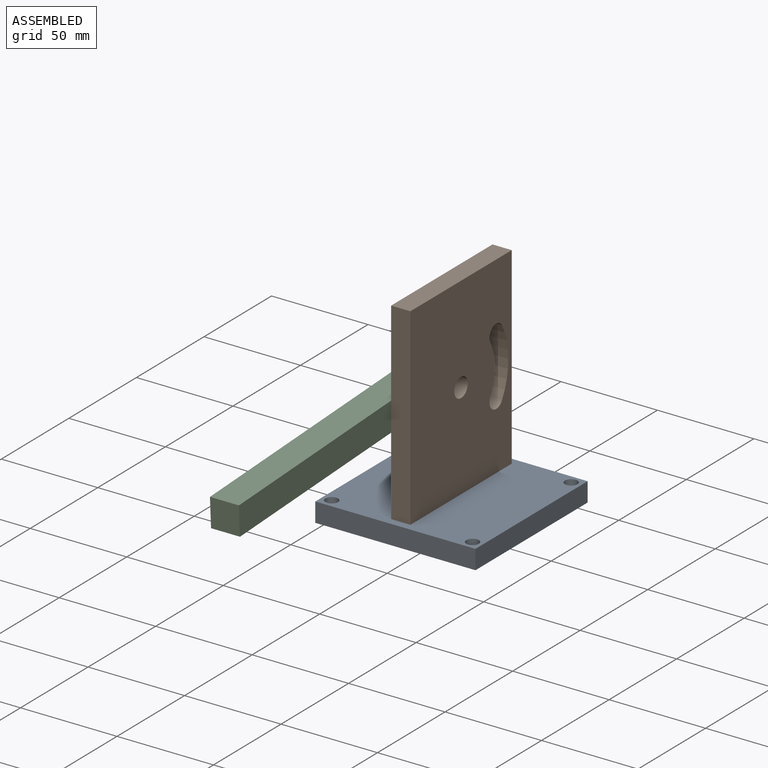
[diagram: assembled view]
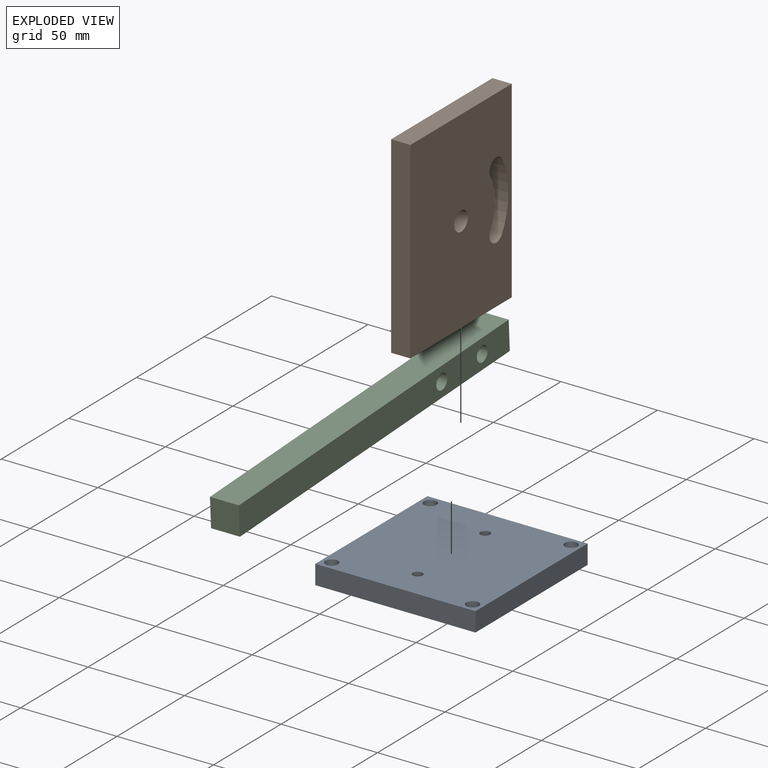
[diagram: exploded view]
GUIDED TOUR — MATED ASSEMBLY (Onshape document 552bffa299c8f2add3748529, AutoMate assembly 552bffa299c8f2add3748529_c0f6830e44eadf8c349f71ad_71cb92683339becc599525eb_default)

This assembly has 3 components, labeled P0..P2 below (a component is one placed occurrence of a part; the same part can appear more than once), held together by 3 mates. A mate is a constraint between two components; its type names the relative motion it leaves free:
  REVOLUTE — leaves rotation about the listed axis free (a hinge).
Axis/direction vectors are unit vectors and 'through' points are millimeter coordinates, both in the assembly's world frame.

MATES
  1. REVOLUTE "Revolute 2": P1 <-> P0, axis (0.000, 0.000, -1.000) through (27.87, -67.23, -19.62) mm
  2. REVOLUTE "Revolute 3": P2 <-> P1, axis (1.000, 0.000, 0.000) through (22.87, -42.23, 30.38) mm
  3. REVOLUTE "Revolute 1": P1 <-> P0, axis (0.000, 0.000, -1.000) through (27.87, -17.23, -19.62) mm

ASSEMBLY ORDER
  1. P2 — the base component [order verified]
  2. P1 [order verified]
  3. P0 [order verified]
Order-tag legend:
  [order verified] — this step's position reverses a verified removal order: the component was checked to insert without passing through the ones already placed.

Of the 3 components, 3 carry the full construction recipe — the FeatureScript program that regenerates the part's solid from scratch; the rest are supplied as boundary geometry only.
Each toured component is shown spotlighted twice — in the assembled view, then in the exploded view, where a leader line traces a displaced component back to its assembled socket (saturated green if recipe-attached, orange if geometry-only; every other component desaturated gray) — followed by its recipe or geometry summary and the mates that hold it.
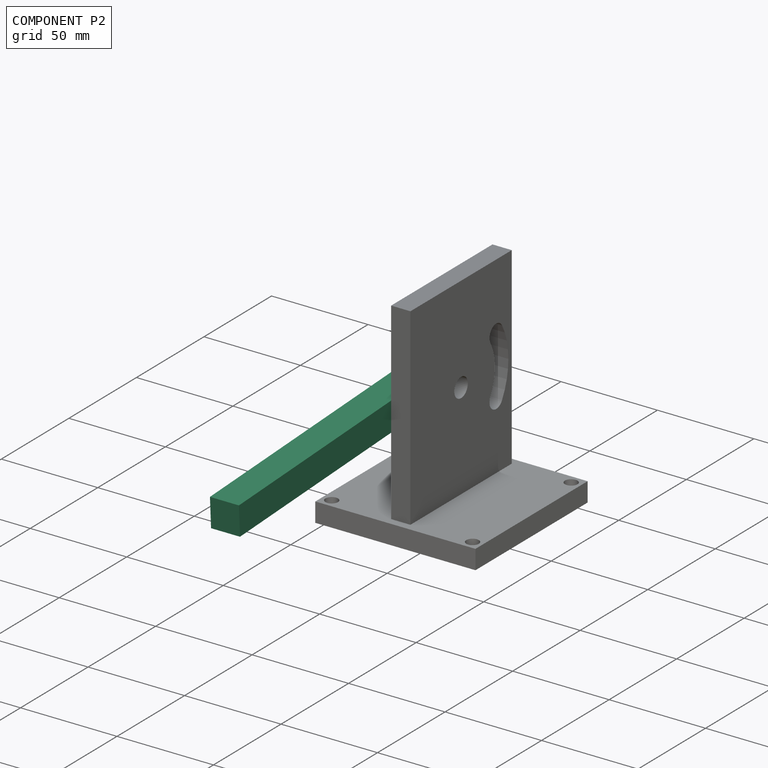
[diagram: component P2 — assembled]
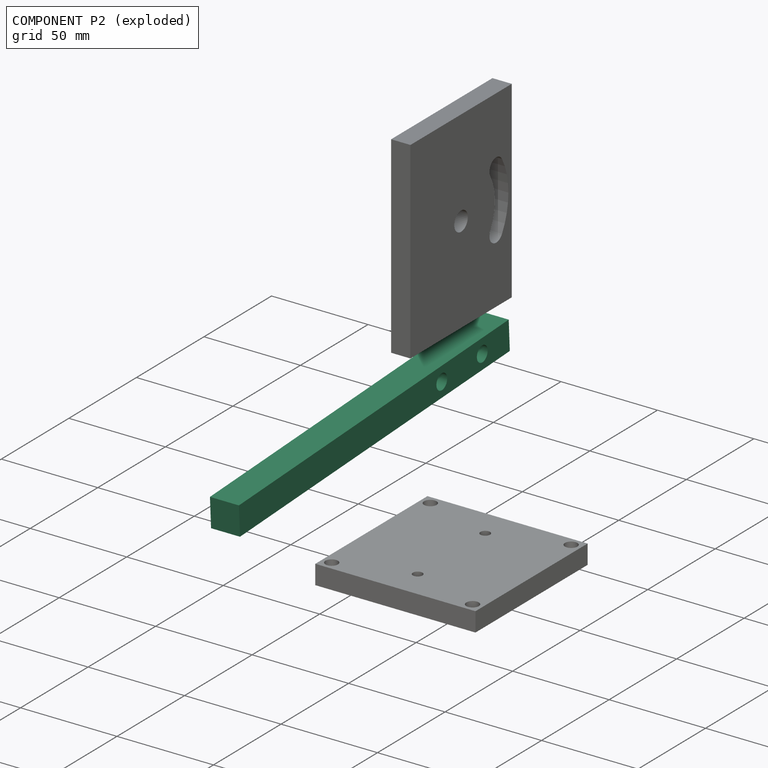
[diagram: component P2 — exploded]
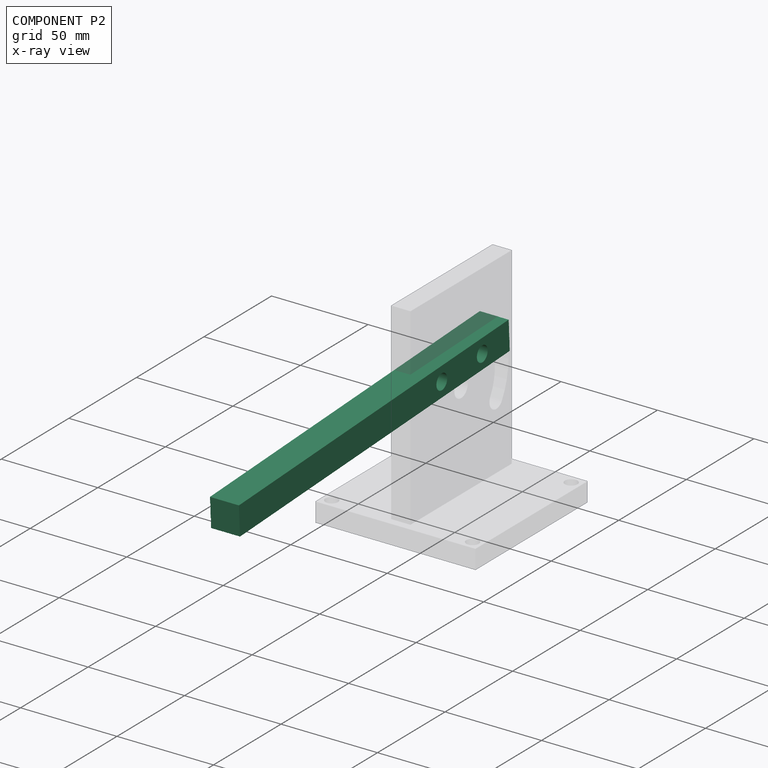
[diagram: component P2 — x-ray view]
COMPONENT P2 — recipe-attached (CADFS 00929787, mesh-verified: the recipe's output STEP matches this component's geometry to below the mesh-comparison resolution (tessellation chordal tolerance ~0.302 mm)).
Held by: REVOLUTE mate "Revolute 3" to P1.
Construction recipe (FeatureScript — the CAD program that rebuilds this solid; sketch coordinates are in the units given by the * unit suffixes, e.g. mm):

FeatureScript 1511;
import(path : "onshape/std/geometry.fs", version : "1511.0");
import(path : "onshape/std/common.fs", version : "1511.0");
const mm = millimeter;
const VERTEX = EntityType.VERTEX;
const EDGE = EntityType.EDGE;
const FACE = EntityType.FACE;
const BODY = EntityType.BODY;
function v(x, y){return vector(x, y);}
function OD(order){return orderDisambiguation(order);}
function OSD(set){return originalSetDisambiguation(set);}
function TD(topology){return topologyDisambiguation(topology);}
function TDD(query){return trueDependencyDisambiguation(query);}
function sQuery(a, b, c) {return sketchEntityQuery(a, b, c);}

annotation { "Feature Type Name" : "Feature", "Feature Type Description" : "" }
export const myFeature = defineFeature(function(context is Context, id is Id, definition is map)
    precondition{}
    {
        {
            var Q0;
            Q0=qCreatedBy(makeId("Top.planeOp"),FACE);
            var sketch = newSketch(context, id + "F0", { "sketchPlane" : qUnion([Q0])});
            skLineSegment(sketch, "E0.bottom", {"start": v(-7.5, -100) * mm, "end": v(7.5, -100) * mm});
            skLineSegment(sketch, "E0.top", {"start": v(-7.5, 100) * mm, "end": v(7.5, 100) * mm});
            skLineSegment(sketch, "E0.left", {"start": v(-7.5, -100) * mm, "end": v(-7.5, 100) * mm});
            skLineSegment(sketch, "E0.right", {"start": v(7.5, -100) * mm, "end": v(7.5, 100) * mm});
            skPoint(sketch, "E0.middle", {"position": v(0, 0) * mm});
            skSolve(sketch);
        }
        {
            var Q0;
            Q0 = qSketchRegion(id + "F0", true);
            extrude(context, id + "F1", {"entities" : qUnion([Q0]), "depth" : 15 * mm, "offsetDistance" : 25 * mm});
        }
        {
            var Q0;
            Q0=makeQuery(id+"F1.opExtrude","SWEPT_FACE",FACE,{"disambiguationData":[OSD([sQuery(id+"F0.wireOp",EDGE,"E0.right")])]});
            var sketch = newSketch(context, id + "F2", { "sketchPlane" : qUnion([Q0])});
            skLineSegment(sketch, "E1", {"start": v(100, 7.5) * mm, "end": v(-100, 7.5) * mm, "construction": true});
            skLineSegment(sketch, "E2", {"start": v(80, 0) * mm, "end": v(80, 15) * mm, "construction": true});
            skLineSegment(sketch, "E3", {"start": v(50, 0) * mm, "end": v(50, 15) * mm, "construction": true});
            skCircle(sketch, "E4", {"center": v(50, 7.5) * mm, "radius": 4 * mm});
            skCircle(sketch, "E5", {"center": v(80, 7.5) * mm, "radius": 4 * mm});
            skSolve(sketch);
        }
        {
            var Q0;
            Q0 = qSketchRegion(id + "F2", true);
            extrude(context, id + "F3", {"entities" : qUnion([Q0]), "operationType" : NewBodyOperationType.REMOVE, "endBound" : BoundingType.UP_TO_NEXT, "oppositeDirection" : true, "depth" : 25 * mm, "offsetDistance" : 25 * mm});
        }
    });
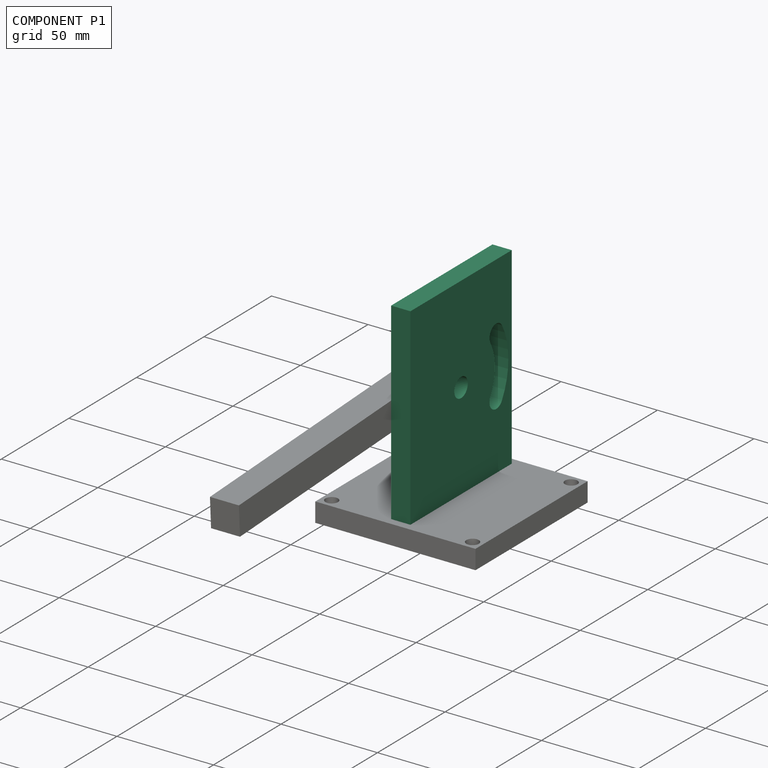
[diagram: component P1 — assembled]
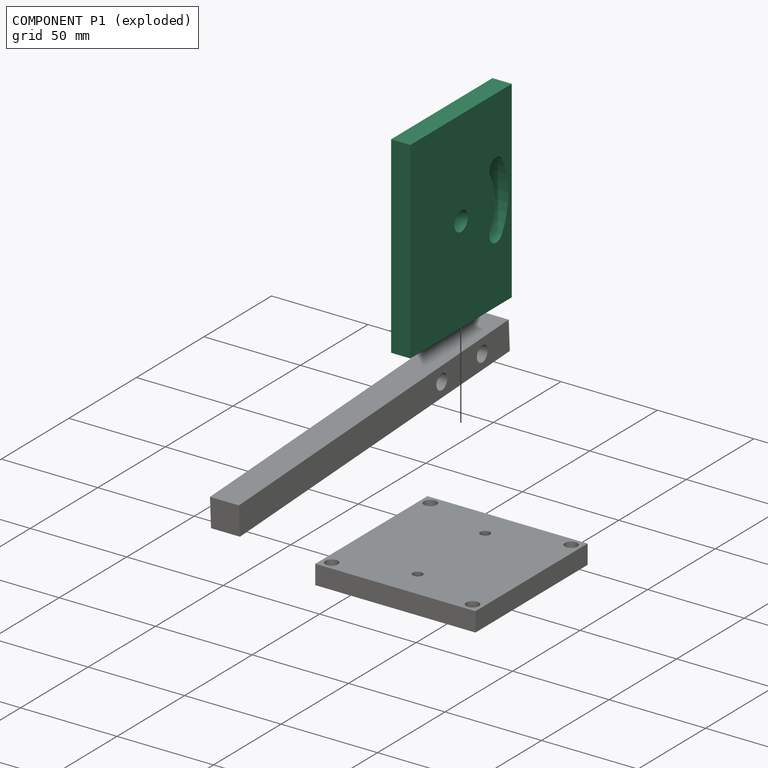
[diagram: component P1 — exploded]
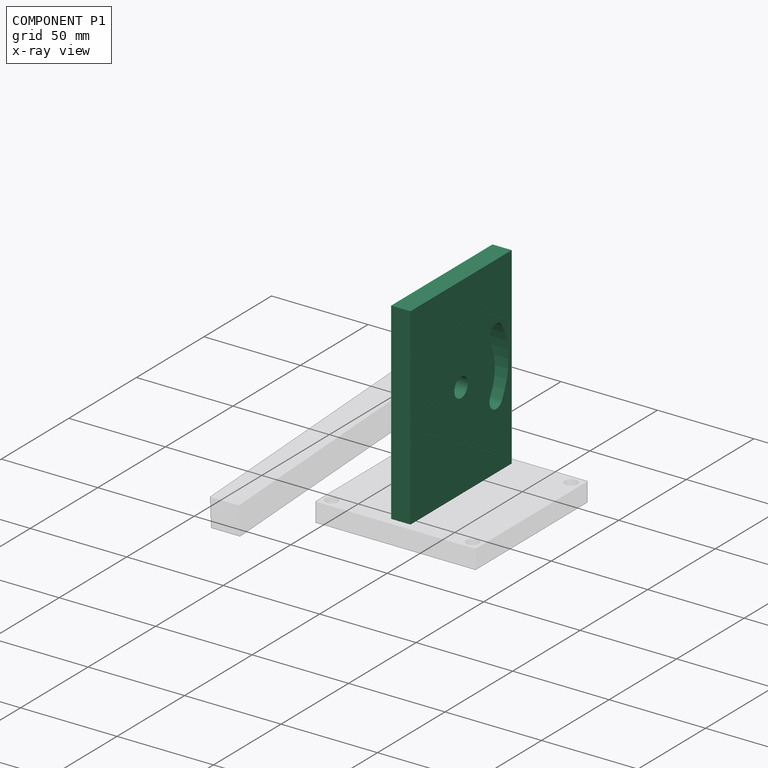
[diagram: component P1 — x-ray view]
COMPONENT P1 — recipe-attached (CADFS 00929786, mesh-verified: the recipe's output STEP matches this component's geometry to below the mesh-comparison resolution (tessellation chordal tolerance ~0.188 mm)).
Held by: REVOLUTE mate "Revolute 2" to P0; REVOLUTE mate "Revolute 3" to P2; REVOLUTE mate "Revolute 1" to P0.
Construction recipe (FeatureScript — the CAD program that rebuilds this solid; sketch coordinates are in the units given by the * unit suffixes, e.g. mm):

FeatureScript 1511;
import(path : "onshape/std/geometry.fs", version : "1511.0");
import(path : "onshape/std/common.fs", version : "1511.0");
const mm = millimeter;
const VERTEX = EntityType.VERTEX;
const EDGE = EntityType.EDGE;
const FACE = EntityType.FACE;
const BODY = EntityType.BODY;
function v(x, y){return vector(x, y);}
function OD(order){return orderDisambiguation(order);}
function OSD(set){return originalSetDisambiguation(set);}
function TD(topology){return topologyDisambiguation(topology);}
function TDD(query){return trueDependencyDisambiguation(query);}
function sQuery(a, b, c) {return sketchEntityQuery(a, b, c);}

annotation { "Feature Type Name" : "Feature", "Feature Type Description" : "" }
export const myFeature = defineFeature(function(context is Context, id is Id, definition is map)
    precondition{}
    {
        {
            var Q0;
            Q0=qCreatedBy(makeId("Top.planeOp"),FACE);
            var sketch = newSketch(context, id + "F0", { "sketchPlane" : qUnion([Q0])});
            skLineSegment(sketch, "E0.bottom", {"start": v(5, 37.5) * mm, "end": v(-5, 37.5) * mm});
            skLineSegment(sketch, "E0.top", {"start": v(5, -37.5) * mm, "end": v(-5, -37.5) * mm});
            skLineSegment(sketch, "E0.left", {"start": v(5, 37.5) * mm, "end": v(5, -37.5) * mm});
            skLineSegment(sketch, "E0.right", {"start": v(-5, 37.5) * mm, "end": v(-5, -37.5) * mm});
            skPoint(sketch, "E0.middle", {"position": v(0, 0) * mm});
            skSolve(sketch);
        }
        {
            var Q0;
            Q0 = qSketchRegion(id + "F0", true);
            extrude(context, id + "F1", {"entities" : qUnion([Q0]), "depth" : 100 * mm, "offsetDistance" : 25 * mm});
        }
        {
            var Q0;
            Q0=makeQuery(id+"F1.opExtrude","CAP_FACE",FACE,{"disambiguationData":[OSD([sQuery(id+"F0.wireOp",EDGE,"E0.bottom"),sQuery(id+"F0.wireOp",EDGE,"E0.top"),sQuery(id+"F0.wireOp",EDGE,"E0.left"),sQuery(id+"F0.wireOp",EDGE,"E0.right")])],"isStart":true});
            var sketch = newSketch(context, id + "F2", { "sketchPlane" : qUnion([Q0])});
            skLineSegment(sketch, "E1", {"start": v(0, 37.5) * mm, "end": v(0, -37.5) * mm, "construction": true});
            skLineSegment(sketch, "E2", {"start": v(-5, 0) * mm, "end": v(5, 0) * mm, "construction": true});
            skLineSegment(sketch, "E3.0", {"start": v(-7.5, -25) * mm, "end": v(7.5, -25) * mm, "construction": true});
            skLineSegment(sketch, "E4.0", {"start": v(-7.5, 25) * mm, "end": v(7.5, 25) * mm, "construction": true});
            skCircle(sketch, "E5", {"center": v(0, 25) * mm, "radius": 2.5 * mm});
            skCircle(sketch, "E6", {"center": v(0, -25) * mm, "radius": 2.5 * mm});
            skSolve(sketch);
        }
        {
            var Q0;
            Q0=sQuery(id+"F2.wireOp",VERTEX,"E5.center");
            var Q1;
            Q1=sQuery(id+"F2.wireOp",VERTEX,"E6.center");
            var Q2;
            Q2=makeQuery(id+"F1.opExtrude","SWEPT_BODY",BODY,{"disambiguationData":[OSD([sQuery(id+"F0.wireOp",EDGE,"E0.bottom"),sQuery(id+"F0.wireOp",EDGE,"E0.top"),sQuery(id+"F0.wireOp",EDGE,"E0.left"),sQuery(id+"F0.wireOp",EDGE,"E0.right")])]});
            hole(context, id + "F3", {"style" : HoleStyle.SIMPLE, "endStyle" : HoleEndStyle.BLIND, "standardTappedOrClearance" : lookupTablePath({ "standard" : "ISO", "engagement" : "75%", "pitch" : "1 mm", "size" : "M6", "type" : "Tapped" }), "standardBlindInLast" : lookupTablePath({ "standard" : "ISO", "engagement" : "75%", "pitch" : "1 mm", "size" : "M6", "type" : "Tapped" }), "holeDiameter" : 5 * mm, "majorDiameter" : 6 * mm, "showTappedDepth" : true, "holeDepth" : 15 * mm, "isTappedThrough" : true, "tappedDepth" : 12 * mm, "tapClearance" : 3, "locations" : qUnion([Q0, Q1]), "scope" : qUnion([Q2])});
        }
        {
            var Q0;
            Q0=makeQuery(id+"F1.opExtrude","SWEPT_FACE",FACE,{"disambiguationData":[OSD([sQuery(id+"F0.wireOp",EDGE,"E0.right")])]});
            var sketch = newSketch(context, id + "F4", { "sketchPlane" : qUnion([Q0])});
            skLineSegment(sketch, "E7", {"start": v(-37.5, 50) * mm, "end": v(37.5, 50) * mm, "construction": true});
            skLineSegment(sketch, "E8", {"start": v(0, 100) * mm, "end": v(0, 0) * mm, "construction": true});
            skCircle(sketch, "E9", {"center": v(0, 50) * mm, "radius": 5 * mm});
            skSolve(sketch);
        }
        {
            var Q0;
            Q0 = qSketchRegion(id + "F4", true);
            extrude(context, id + "F5", {"entities" : qUnion([Q0]), "operationType" : NewBodyOperationType.REMOVE, "endBound" : BoundingType.UP_TO_NEXT, "oppositeDirection" : true, "depth" : 25 * mm, "offsetDistance" : 25 * mm});
        }
        {
            var Q0;
            Q0=makeQuery(id+"F1.opExtrude","SWEPT_FACE",FACE,{"disambiguationData":[OSD([sQuery(id+"F0.wireOp",EDGE,"E0.right")])]});
            var sketch = newSketch(context, id + "F6", { "sketchPlane" : qUnion([Q0])});
            skLineSegment(sketch, "E10", {"start": v(-37.5, 50) * mm, "end": v(37.5, 50) * mm, "construction": true});
            skLineSegment(sketch, "E11", {"start": v(0, 100) * mm, "end": v(0, 0) * mm, "construction": true});
            skArc(sketch, "E12", {"start": v(-21.65, 62.5) * mm, "mid": v(-25, 50) * mm, "end": v(-21.65, 37.5) * mm});
            skArc(sketch, "E13.0", {"start": v(-30.31, 67.5) * mm, "mid": v(-35, 50) * mm, "end": v(-30.31, 32.5) * mm});
            skLineSegment(sketch, "E14.0", {"start": v(-42.5, -5) * mm, "end": v(42.5, -5) * mm});
            skLineSegment(sketch, "E14.1", {"start": v(-42.5, 105) * mm, "end": v(-42.5, -5) * mm});
            skLineSegment(sketch, "E14.2", {"start": v(42.5, 105) * mm, "end": v(-42.5, 105) * mm});
            skLineSegment(sketch, "E14.3", {"start": v(42.5, -5) * mm, "end": v(42.5, 105) * mm});
            skLineSegment(sketch, "E15", {"start": v(-21.65, 62.5) * mm, "end": v(-30.31, 67.5) * mm, "construction": true});
            skLineSegment(sketch, "E16.MirrorCS", {"start": v(-21.65, 37.5) * mm, "end": v(-30.31, 32.5) * mm, "construction": true});
            skPoint(sketch, "E17.orphan", {"position": v(-32.43, 68.72) * mm});
            skPoint(sketch, "E18.orphan", {"position": v(-32.43, 31.28) * mm});
            skArc(sketch, "E19", {"start": v(-21.65, 62.5) * mm, "mid": v(-23.48, 69.33) * mm, "end": v(-30.31, 67.5) * mm});
            skArc(sketch, "E20", {"start": v(-30.31, 32.5) * mm, "mid": v(-23.48, 30.67) * mm, "end": v(-21.65, 37.5) * mm});
            skSolve(sketch);
        }
        {
            var Q0;
            Q0=makeQuery(id+"F6.imprint","IMPRINT",FACE,{"disambiguationData":[TD([[makeQuery(id+"F6.imprint","IMPRINT",EDGE,{"derivedFrom":sQuery(id+"F6.wireOp",EDGE,"E12")}),-1.0]])]});
            var Q1;
            Q1=sQuery(id+"F6.wireOp",EDGE,"E12");
            var Q2;
            Q2=sQuery(id+"F6.wireOp",EDGE,"E19");
            var Q3;
            Q3=sQuery(id+"F6.wireOp",EDGE,"E13.0");
            var Q4;
            Q4=sQuery(id+"F6.wireOp",EDGE,"E20");
            extrude(context, id + "F7", {"entities" : qUnion([Q0]), "operationType" : NewBodyOperationType.REMOVE, "surfaceEntities" : qUnion([Q1, Q2, Q3, Q4]), "endBound" : BoundingType.UP_TO_NEXT, "oppositeDirection" : true, "depth" : 25 * mm, "offsetDistance" : 25 * mm});
        }
    });
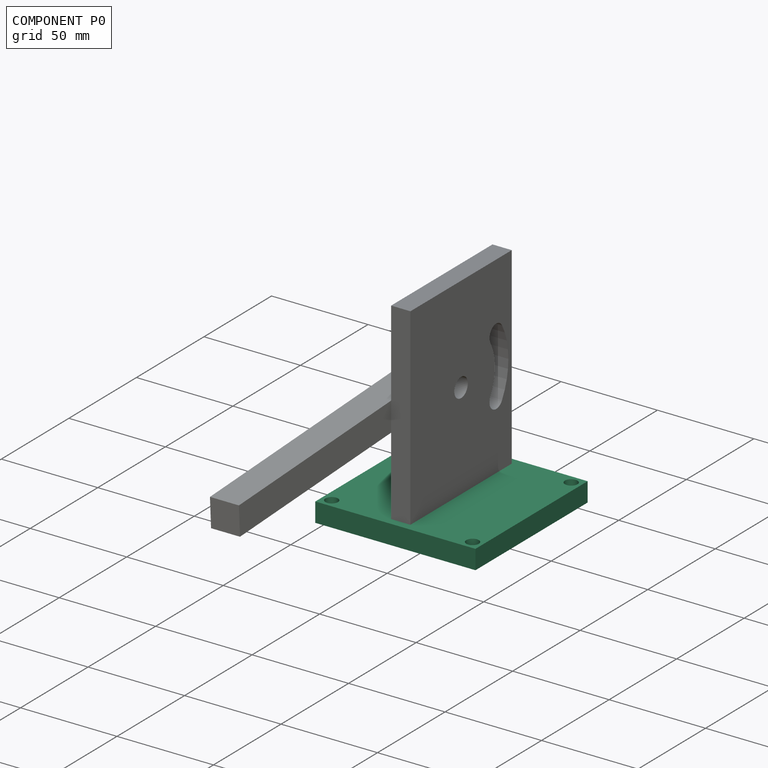
[diagram: component P0 — assembled]
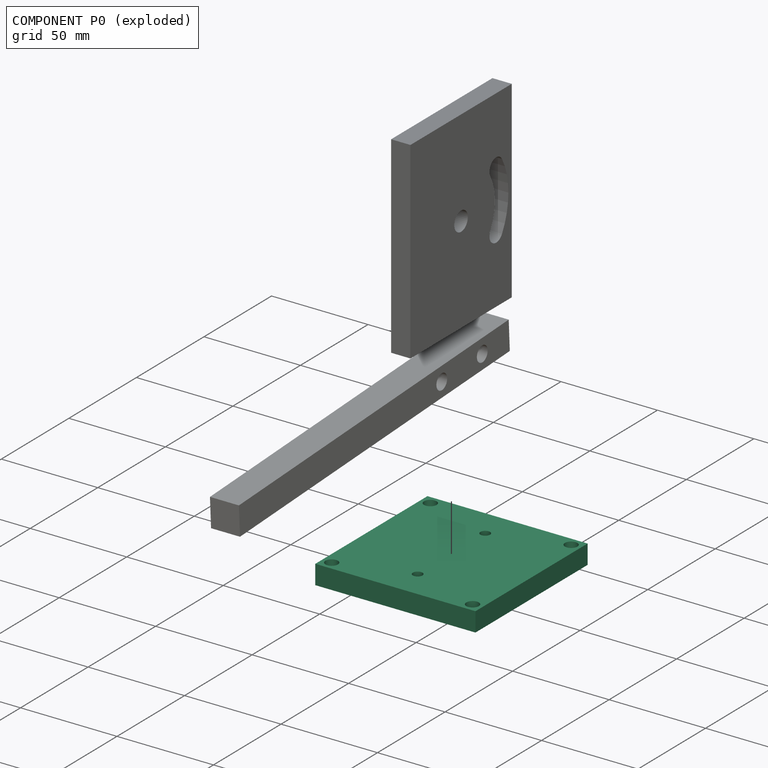
[diagram: component P0 — exploded]
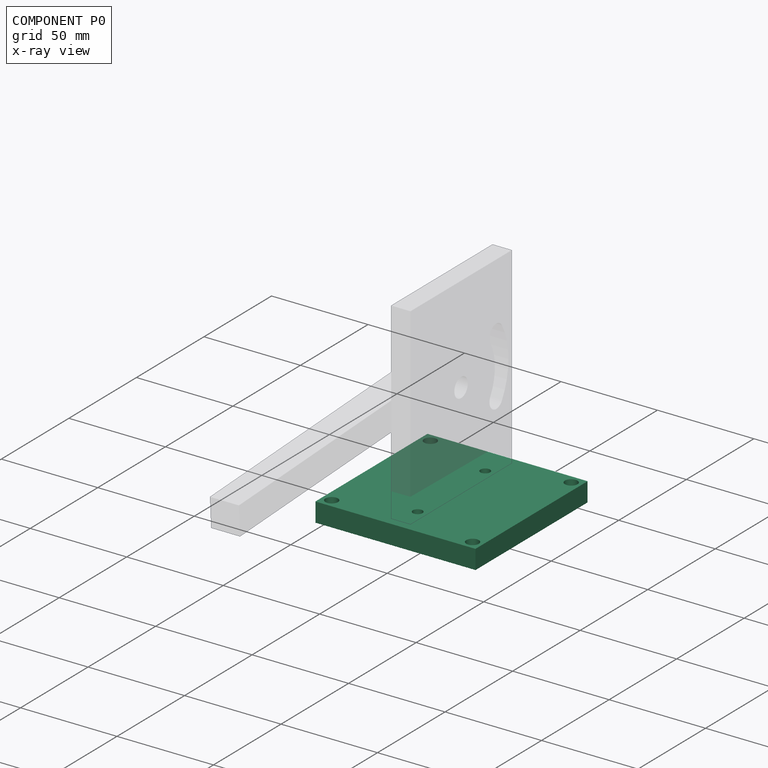
[diagram: component P0 — x-ray view]
COMPONENT P0 — recipe-attached (CADFS 00929785, mesh-verified: the recipe's output STEP matches this component's geometry to below the mesh-comparison resolution (tessellation chordal tolerance ~0.177 mm)).
Held by: REVOLUTE mate "Revolute 2" to P1; REVOLUTE mate "Revolute 1" to P1.
Construction recipe (FeatureScript — the CAD program that rebuilds this solid; sketch coordinates are in the units given by the * unit suffixes, e.g. mm):

FeatureScript 1511;
import(path : "onshape/std/geometry.fs", version : "1511.0");
import(path : "onshape/std/common.fs", version : "1511.0");
const mm = millimeter;
const VERTEX = EntityType.VERTEX;
const EDGE = EntityType.EDGE;
const FACE = EntityType.FACE;
const BODY = EntityType.BODY;
function v(x, y){return vector(x, y);}
function OD(order){return orderDisambiguation(order);}
function OSD(set){return originalSetDisambiguation(set);}
function TD(topology){return topologyDisambiguation(topology);}
function TDD(query){return trueDependencyDisambiguation(query);}
function sQuery(a, b, c) {return sketchEntityQuery(a, b, c);}

annotation { "Feature Type Name" : "Feature", "Feature Type Description" : "" }
export const myFeature = defineFeature(function(context is Context, id is Id, definition is map)
    precondition{}
    {
        {
            var Q0;
            Q0=qCreatedBy(makeId("Top.planeOp"),FACE);
            var sketch = newSketch(context, id + "F0", { "sketchPlane" : qUnion([Q0])});
            skLineSegment(sketch, "E0.bottom", {"start": v(41.5, 41.5) * mm, "end": v(-41.5, 41.5) * mm});
            skLineSegment(sketch, "E0.top", {"start": v(41.5, -41.5) * mm, "end": v(-41.5, -41.5) * mm});
            skLineSegment(sketch, "E0.left", {"start": v(41.5, 41.5) * mm, "end": v(41.5, -41.5) * mm});
            skLineSegment(sketch, "E0.right", {"start": v(-41.5, 41.5) * mm, "end": v(-41.5, -41.5) * mm});
            skPoint(sketch, "E0.middle", {"position": v(0, 0) * mm});
            skSolve(sketch);
        }
        {
            var Q0;
            Q0 = qSketchRegion(id + "F0", true);
            extrude(context, id + "F1", {"entities" : qUnion([Q0]), "depth" : 10 * mm, "offsetDistance" : 25 * mm});
        }
        {
            var Q0;
            Q0=makeQuery(id+"F1.opExtrude","CAP_FACE",FACE,{"disambiguationData":[OSD([sQuery(id+"F0.wireOp",EDGE,"E0.bottom"),sQuery(id+"F0.wireOp",EDGE,"E0.top"),sQuery(id+"F0.wireOp",EDGE,"E0.left"),sQuery(id+"F0.wireOp",EDGE,"E0.right")])],"isStart":false});
            var sketch = newSketch(context, id + "F2", { "sketchPlane" : qUnion([Q0])});
            skLineSegment(sketch, "E1", {"start": v(71.1, 36.5) * mm, "end": v(-79.54, 36.5) * mm, "construction": true});
            skLineSegment(sketch, "E2", {"start": v(-78.9, -36.5) * mm, "end": v(83.67, -36.5) * mm, "construction": true});
            skLineSegment(sketch, "E3", {"start": v(-36.5, 85.44) * mm, "end": v(-36.5, -99.54) * mm, "construction": true});
            skLineSegment(sketch, "E4", {"start": v(36.5, 83.72) * mm, "end": v(36.5, -82.62) * mm, "construction": true});
            skCircle(sketch, "E5", {"center": v(-36.5, 36.5) * mm, "radius": 3.25 * mm});
            skCircle(sketch, "E6", {"center": v(-36.5, -36.5) * mm, "radius": 3.25 * mm});
            skCircle(sketch, "E7", {"center": v(36.5, -36.5) * mm, "radius": 3.25 * mm});
            skCircle(sketch, "E8", {"center": v(36.5, 36.5) * mm, "radius": 3.25 * mm});
            skSolve(sketch);
        }
        {
            var Q0;
            Q0 = qSketchRegion(id + "F2", true);
            extrude(context, id + "F3", {"entities" : qUnion([Q0]), "operationType" : NewBodyOperationType.REMOVE, "endBound" : BoundingType.UP_TO_NEXT, "oppositeDirection" : true, "depth" : 25 * mm, "offsetDistance" : 25 * mm});
        }
        {
            var Q0;
            Q0=makeQuery(id+"F1.opExtrude","CAP_FACE",FACE,{"disambiguationData":[OSD([sQuery(id+"F0.wireOp",EDGE,"E0.bottom"),sQuery(id+"F0.wireOp",EDGE,"E0.top"),sQuery(id+"F0.wireOp",EDGE,"E0.left"),sQuery(id+"F0.wireOp",EDGE,"E0.right")])],"isStart":true});
            var sketch = newSketch(context, id + "F4", { "sketchPlane" : qUnion([Q0])});
            skLineSegment(sketch, "E9", {"start": v(0, 41.5) * mm, "end": v(0, -41.5) * mm, "construction": true});
            skLineSegment(sketch, "E10", {"start": v(-41.5, 0) * mm, "end": v(41.5, 0) * mm, "construction": true});
            skLineSegment(sketch, "E11.0", {"start": v(-50, -25) * mm, "end": v(50, -25) * mm, "construction": true});
            skLineSegment(sketch, "E12.0", {"start": v(-50, 25) * mm, "end": v(50, 25) * mm, "construction": true});
            skLineSegment(sketch, "E13.0", {"start": v(46.5, 46.5) * mm, "end": v(-46.5, 46.5) * mm});
            skLineSegment(sketch, "E13.1", {"start": v(46.5, -46.5) * mm, "end": v(46.5, 46.5) * mm});
            skLineSegment(sketch, "E13.2", {"start": v(-46.5, -46.5) * mm, "end": v(46.5, -46.5) * mm});
            skLineSegment(sketch, "E13.3", {"start": v(-46.5, 46.5) * mm, "end": v(-46.5, -46.5) * mm});
            skCircle(sketch, "E14", {"center": v(0, -25) * mm, "radius": 2.5 * mm});
            skCircle(sketch, "E15", {"center": v(0, 25) * mm, "radius": 2.5 * mm});
            skSolve(sketch);
        }
        {
            var Q0;
            Q0=sQuery(id+"F4.wireOp",VERTEX,"E14.center");
            var Q1;
            Q1=sQuery(id+"F4.wireOp",VERTEX,"E15.center");
            var Q2;
            Q2=makeQuery(id+"F1.opExtrude","SWEPT_BODY",BODY,{"disambiguationData":[OSD([sQuery(id+"F0.wireOp",EDGE,"E0.bottom"),sQuery(id+"F0.wireOp",EDGE,"E0.top"),sQuery(id+"F0.wireOp",EDGE,"E0.left"),sQuery(id+"F0.wireOp",EDGE,"E0.right")])]});
            hole(context, id + "F5", {"style" : HoleStyle.C_BORE, "endStyle" : HoleEndStyle.BLIND, "standardTappedOrClearance" : lookupTablePath({ "standard" : "ISO", "engagement" : "75%", "pitch" : "1 mm", "size" : "M6", "type" : "Tapped" }), "standardBlindInLast" : lookupTablePath({ "standard" : "ISO", "engagement" : "75%", "pitch" : "1 mm", "size" : "M6", "type" : "Tapped" }), "holeDiameter" : 5 * mm, "cBoreDiameter" : 11.25 * mm, "cBoreDepth" : 6 * mm, "majorDiameter" : 6 * mm, "showTappedDepth" : true, "holeDepth" : 15 * mm, "isTappedThrough" : true, "tappedDepth" : 12 * mm, "tapClearance" : 3, "startFromSketch" : true, "locations" : qUnion([Q0, Q1]), "scope" : qUnion([Q2])});
        }
    });
PROVENANCE & LICENSES
Assembly (occurrences, transforms, mates, per-part STEP geometry): AutoMate dataset, Zenodo record 7776208, CC0.
Construction recipes: CADFS (HuggingFace VladPyatov/CADFS, CC-BY-4.0, layered over the ABC dataset), FeatureScript reconstruction programs keyed by ABC model id.
Join: ABC meta listings map ABC model id -> Onshape documentId; within a shared document, parts are matched by geometric signature (bounding-box dims + volume at 0.1% relative tolerance, exact B-rep face/solid counts).
Verification: 3 of this assembly's 3 components carry a recipe attachment, and every attachment is mesh-verified: the CADFS STEP and the AutoMate member STEP were compared as meshes in their shared local frame (symmetric sampled-point-to-mesh distance); worst across the 3 attachments: below the mesh-comparison resolution (tessellation chordal tolerance ~0.302 mm) on a 201 mm part.
Renders: orthographic iso camera (az 35 / el 25); the floor grid conveys scale (grid pitch printed in each image; no ruler). In the exploded view each component is displaced by its stored offset vector: the offsets alone carry the explosion direction (mate normal/axis signs are not orientation cues and do not encode it), and separation distances are assigned per mate-chain, not proportionally to assembly-order depth.
